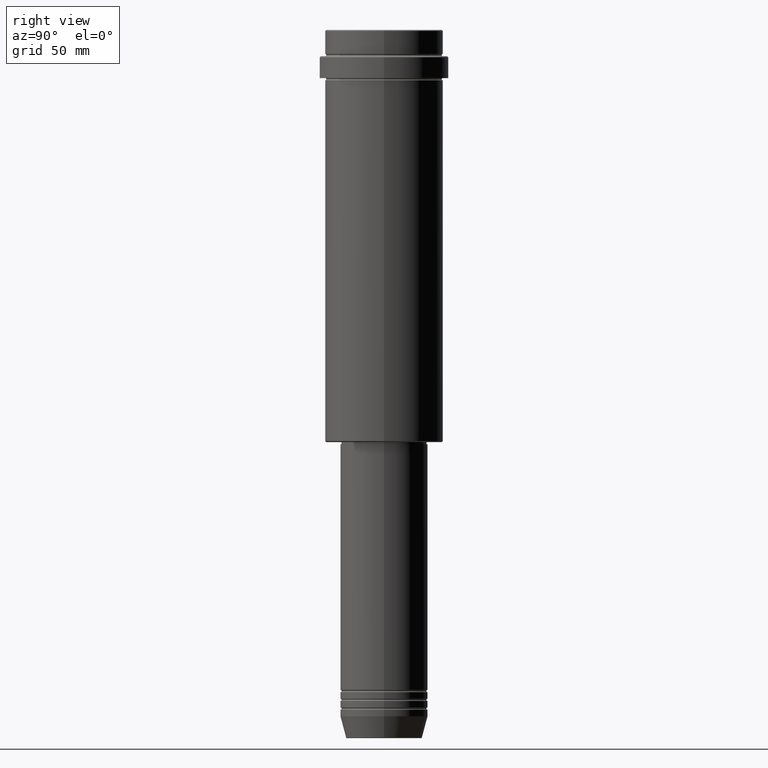
[diagram: clean part render]
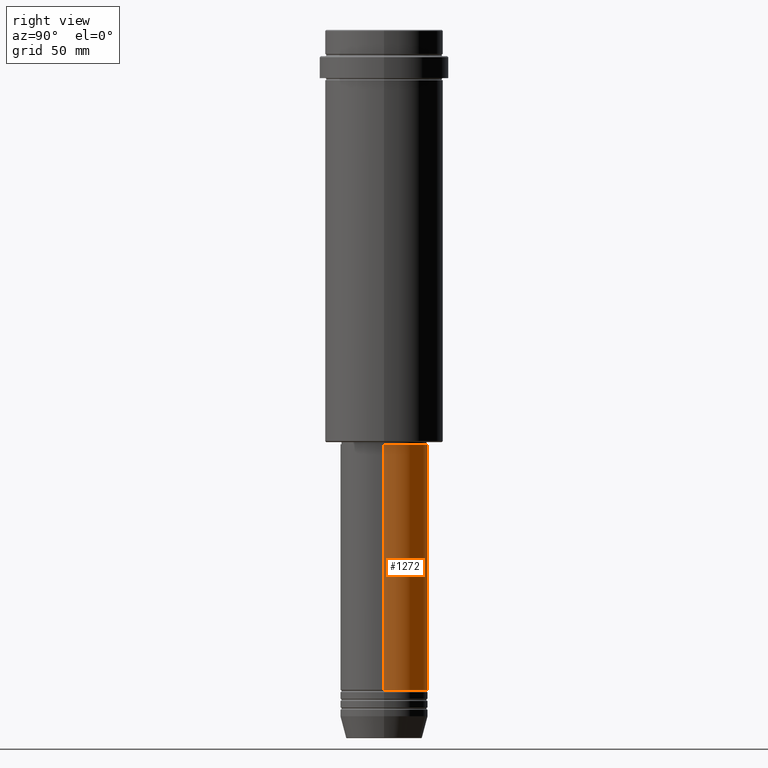
[diagram: same view with one face highlighted and labeled with its STEP entity id]
A machine part, right view. The second image highlights one B-rep face of the part: STEP entity #1272.
In plain terms, the highlighted cylindrical surface (partial cylindrical patch) has radius 20 mm, axis along (-0, -0, 1).
Its self-contained STEP definition (entity closure, byte-faithful):
#5 = CARTESIAN_POINT ( 'NONE',  ( 0.000000000000000000, 0.000000000000000000, -300.9999999999998863 ) ) ;
#23 = DIRECTION ( 'NONE',  ( -0.000000000000000000, -0.000000000000000000, 1.000000000000000000 ) ) ;
#26 = CARTESIAN_POINT ( 'NONE',  ( -20.00000000000000000, 2.449293598294706513E-15, -188.9999999999999147 ) ) ;
#37 = AXIS2_PLACEMENT_3D ( 'NONE', #5, #1324, #424 ) ;
#114 = CARTESIAN_POINT ( 'NONE',  ( 20.00000000000000000, 0.000000000000000000, -188.9999999999999147 ) ) ;
#175 = CIRCLE ( 'NONE', #37, 20.00000000000000000 ) ;
#286 = CARTESIAN_POINT ( 'NONE',  ( 0.000000000000000000, 0.000000000000000000, 0.000000000000000000 ) ) ;
#313 = DIRECTION ( 'NONE',  ( 1.000000000000000000, 0.000000000000000000, 0.000000000000000000 ) ) ;
#339 = VERTEX_POINT ( 'NONE', #114 ) ;
#350 = AXIS2_PLACEMENT_3D ( 'NONE', #754, #1194, #945 ) ;
#351 = CARTESIAN_POINT ( 'NONE',  ( -20.00000000000000000, 2.449293598294706513E-15, -300.9999999999998863 ) ) ;
#358 = ORIENTED_EDGE ( 'NONE', *, *, #1300, .F. ) ;
#424 = DIRECTION ( 'NONE',  ( 1.000000000000000000, 0.000000000000000000, 0.000000000000000000 ) ) ;
#501 = VERTEX_POINT ( 'NONE', #351 ) ;
#506 = EDGE_CURVE ( 'NONE', #689, #339, #899, .T. ) ;
#560 = EDGE_LOOP ( 'NONE', ( #651, #922, #358, #962 ) ) ;
#609 = CYLINDRICAL_SURFACE ( 'NONE', #1048, 20.00000000000000000 ) ;
#627 = CIRCLE ( 'NONE', #350, 20.00000000000000000 ) ;
#651 = ORIENTED_EDGE ( 'NONE', *, *, #774, .T. ) ;
#674 = VERTEX_POINT ( 'NONE', #26 ) ;
#689 = VERTEX_POINT ( 'NONE', #708 ) ;
#708 = CARTESIAN_POINT ( 'NONE',  ( 20.00000000000000000, 0.000000000000000000, -300.9999999999998863 ) ) ;
#748 = FACE_OUTER_BOUND ( 'NONE', #560, .T. ) ;
#754 = CARTESIAN_POINT ( 'NONE',  ( 0.000000000000000000, 0.000000000000000000, -188.9999999999999147 ) ) ;
#762 = DIRECTION ( 'NONE',  ( -0.000000000000000000, -0.000000000000000000, 1.000000000000000000 ) ) ;
#774 = EDGE_CURVE ( 'NONE', #689, #501, #175, .T. ) ;
#800 = EDGE_CURVE ( 'NONE', #501, #674, #1084, .T. ) ;
#844 = DIRECTION ( 'NONE',  ( -0.000000000000000000, -0.000000000000000000, 1.000000000000000000 ) ) ;
#899 = LINE ( 'NONE', #1224, #998 ) ;
#922 = ORIENTED_EDGE ( 'NONE', *, *, #800, .T. ) ;
#945 = DIRECTION ( 'NONE',  ( 1.000000000000000000, 0.000000000000000000, 0.000000000000000000 ) ) ;
#962 = ORIENTED_EDGE ( 'NONE', *, *, #506, .F. ) ;
#986 = CARTESIAN_POINT ( 'NONE',  ( -20.00000000000000000, 2.449293598294706513E-15, 0.000000000000000000 ) ) ;
#998 = VECTOR ( 'NONE', #23, 1000.000000000000000 ) ;
#1048 = AXIS2_PLACEMENT_3D ( 'NONE', #286, #844, #313 ) ;
#1084 = LINE ( 'NONE', #986, #1205 ) ;
#1194 = DIRECTION ( 'NONE',  ( -0.000000000000000000, -0.000000000000000000, 1.000000000000000000 ) ) ;
#1205 = VECTOR ( 'NONE', #762, 1000.000000000000000 ) ;
#1224 = CARTESIAN_POINT ( 'NONE',  ( 20.00000000000000000, 0.000000000000000000, 0.000000000000000000 ) ) ;
#1272 = ADVANCED_FACE ( 'NONE', ( #748 ), #609, .T. ) ;
#1300 = EDGE_CURVE ( 'NONE', #339, #674, #627, .T. ) ;
#1324 = DIRECTION ( 'NONE',  ( -0.000000000000000000, -0.000000000000000000, 1.000000000000000000 ) ) ;